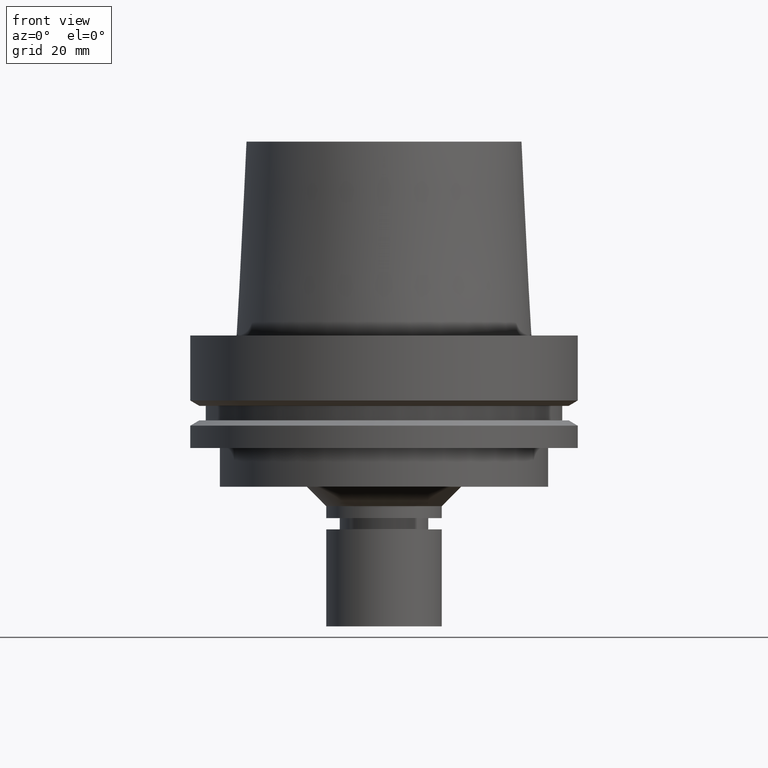
[diagram: clean part render]
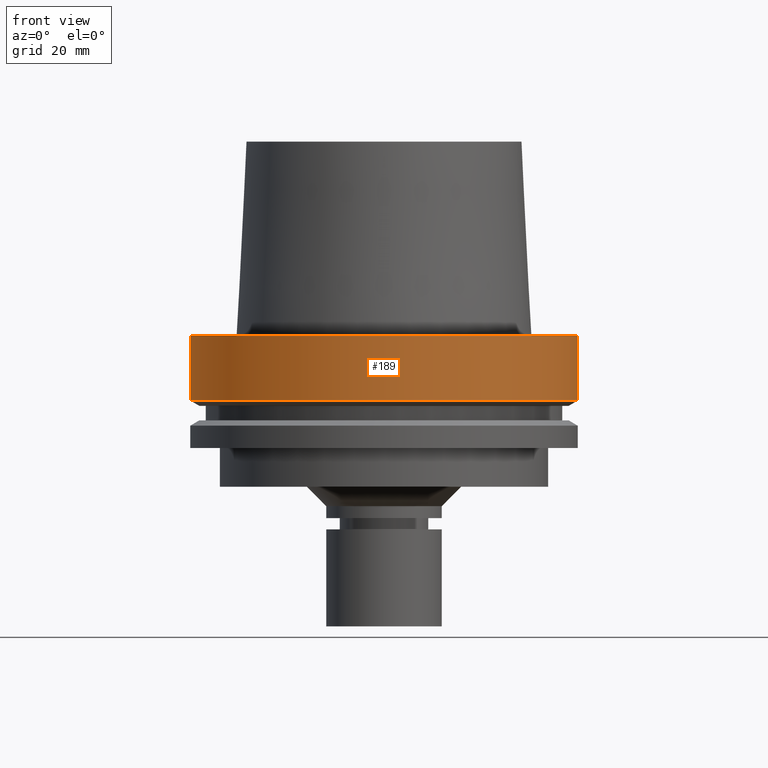
[diagram: same view with one face highlighted and labeled with its STEP entity id]
A machine part, front view. The second image highlights one B-rep face of the part: STEP entity #189.
In plain terms, the highlighted cylindrical surface (bore or boss wall) has radius 50 mm, axis along (0, 0, -1).
Its self-contained STEP definition (entity closure, byte-faithful):
#119=EDGE_CURVE('Unnamed[1]',#281,#281,#282,.T.);
#151=EDGE_CURVE('Unnamed[1]',#330,#330,#331,.T.);
#189=ADVANCED_FACE('Unnamed[1]',(#387,#388),#389,.T.);
#281=VERTEX_POINT('',#495);
#282=CIRCLE('',#496,50.0);
#330=VERTEX_POINT('',#555);
#331=CIRCLE('',#556,50.0);
#387=FACE_BOUND('',#627,.T.);
#388=FACE_BOUND('',#628,.T.);
#389=CYLINDRICAL_SURFACE('',#629,50.0);
#495=CARTESIAN_POINT('',(1.0257889421431E-015,50.0,-16.75240474));
#496=AXIS2_PLACEMENT_3D('',#719,#720,#721);
#555=CARTESIAN_POINT('',(-1.81547968506605E-031,50.0,-9.76766004263236E-016));
#556=AXIS2_PLACEMENT_3D('',#773,#774,#775);
#627=EDGE_LOOP('',(#837));
#628=EDGE_LOOP('',(#838));
#629=AXIS2_PLACEMENT_3D('',#839,#840,#841);
#719=CARTESIAN_POINT('',(1.0257889421431E-015,2.05157788428619E-015,-16.75240474));
#720=DIRECTION('',(6.12323399573677E-017,1.22464679914735E-016,-1.0));
#721=DIRECTION('',(-1.23259516440783E-032,1.0,1.22464679914735E-016));
#773=CARTESIAN_POINT('',(0.0,0.0,0.0));
#774=DIRECTION('',(6.12323399573677E-017,1.22464679914735E-016,-1.0));
#775=DIRECTION('',(-1.23259516440783E-032,1.0,1.22464679914735E-016));
#837=ORIENTED_EDGE('',*,*,#119,.F.);
#838=ORIENTED_EDGE('',*,*,#151,.T.);
#839=CARTESIAN_POINT('',(5.12894471071548E-016,1.0257889421431E-015,-8.37620236999999));
#840=DIRECTION('',(6.12323399573677E-017,1.22464679914735E-016,-1.0));
#841=DIRECTION('',(-1.23259516440783E-032,1.0,1.22464679914735E-016));